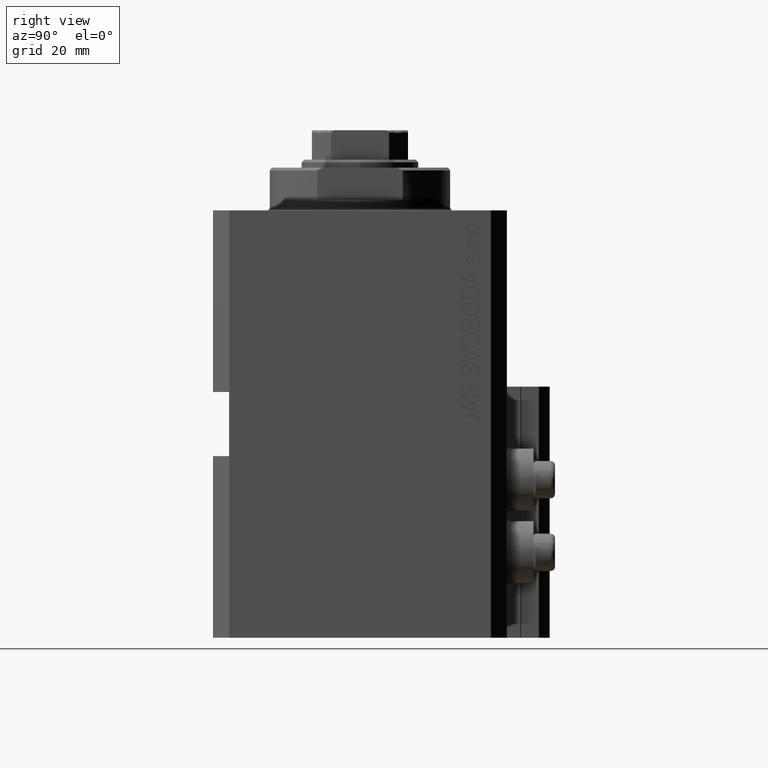
[diagram: clean part render]
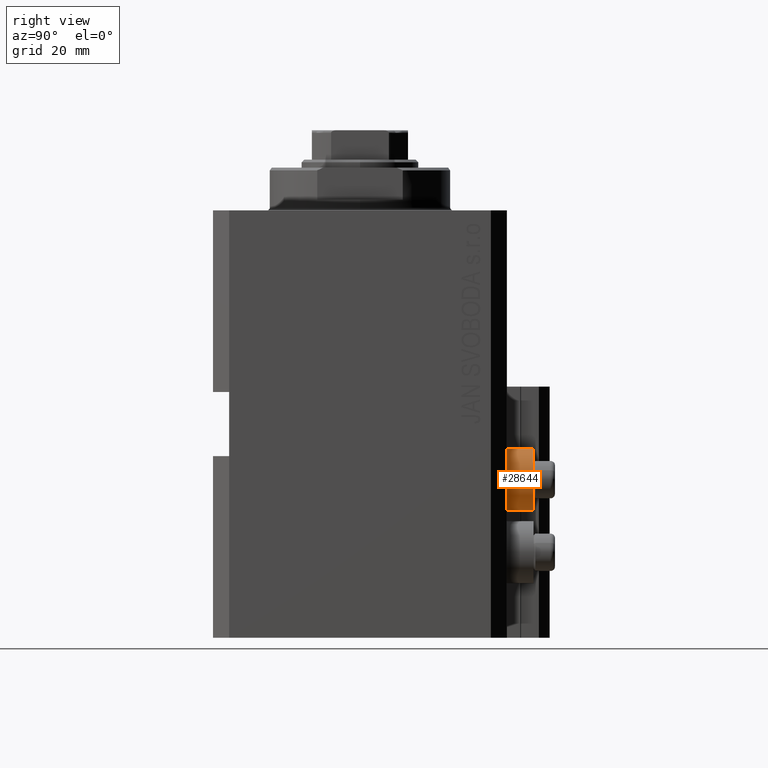
[diagram: same view with one face highlighted and labeled with its STEP entity id]
A machine part, right view. The second image highlights one B-rep face of the part: STEP entity #28644.
In plain terms, the highlighted cylindrical surface (edge-blend (fillet) strip) has radius 5.8 mm, axis along (0, 1, 0).
Its self-contained STEP definition (entity closure, byte-faithful):
#2962 = DIRECTION ( 'NONE',  ( 0.000000000000000000, 1.000000000000000000, 0.000000000000000000 ) ) ;
#6095 = ORIENTED_EDGE ( 'NONE', *, *, #8530, .F. ) ;
#8530 = EDGE_CURVE ( 'NONE', #28333, #27149, #36085, .T. ) ;
#10288 = EDGE_CURVE ( 'NONE', #15228, #27149, #30249, .T. ) ;
#12802 = DIRECTION ( 'NONE',  ( -0.000000000000000000, -1.000000000000000000, -0.000000000000000000 ) ) ;
#13584 = EDGE_CURVE ( 'NONE', #37898, #28333, #17393, .T. ) ;
#14258 = CARTESIAN_POINT ( 'NONE',  ( 18.00000000000000355, 32.49999999996100541, -44.60000000000000142 ) ) ;
#15228 = VERTEX_POINT ( 'NONE', #41702 ) ;
#16398 = EDGE_LOOP ( 'NONE', ( #43533, #40308, #40100, #6095 ) ) ;
#16473 = DIRECTION ( 'NONE',  ( 0.000000000000000000, 0.000000000000000000, 1.000000000000000000 ) ) ;
#17393 = CIRCLE ( 'NONE', #30992, 5.799999999999999822 ) ;
#18068 = CARTESIAN_POINT ( 'NONE',  ( 18.00000000000000355, 32.49999999996100541, -44.60000000000000142 ) ) ;
#20019 = CARTESIAN_POINT ( 'NONE',  ( 18.00000000000000355, 32.49999999996100541, -50.39999999999999858 ) ) ;
#20365 = CARTESIAN_POINT ( 'NONE',  ( 18.00000000000000355, 27.50000000000000355, -50.39999999999999858 ) ) ;
#20513 = LINE ( 'NONE', #42294, #24301 ) ;
#24301 = VECTOR ( 'NONE', #24304, 1000.000000000000000 ) ;
#24304 = DIRECTION ( 'NONE',  ( 0.000000000000000000, 1.000000000000000000, 0.000000000000000000 ) ) ;
#24392 = DIRECTION ( 'NONE',  ( 0.000000000000000000, 0.000000000000000000, 1.000000000000000000 ) ) ;
#25707 = AXIS2_PLACEMENT_3D ( 'NONE', #20019, #41339, #16473 ) ;
#26795 = AXIS2_PLACEMENT_3D ( 'NONE', #43198, #2962, #39661 ) ;
#27149 = VERTEX_POINT ( 'NONE', #14258 ) ;
#28291 = FACE_OUTER_BOUND ( 'NONE', #16398, .T. ) ;
#28333 = VERTEX_POINT ( 'NONE', #40477 ) ;
#28644 = ADVANCED_FACE ( 'NONE', ( #28291 ), #28750, .T. ) ;
#28750 = CYLINDRICAL_SURFACE ( 'NONE', #26795, 5.799999999999999822 ) ;
#28959 = DIRECTION ( 'NONE',  ( 0.000000000000000000, 1.000000000000000000, 0.000000000000000000 ) ) ;
#30249 = CIRCLE ( 'NONE', #25707, 5.799999999999999822 ) ;
#30992 = AXIS2_PLACEMENT_3D ( 'NONE', #20365, #12802, #24392 ) ;
#31552 = CARTESIAN_POINT ( 'NONE',  ( 18.00000000000000355, 27.50000000000000355, -56.20000000000000284 ) ) ;
#33229 = VECTOR ( 'NONE', #28959, 1000.000000000000000 ) ;
#36085 = LINE ( 'NONE', #18068, #33229 ) ;
#37898 = VERTEX_POINT ( 'NONE', #31552 ) ;
#38960 = EDGE_CURVE ( 'NONE', #37898, #15228, #20513, .T. ) ;
#39661 = DIRECTION ( 'NONE',  ( 0.000000000000000000, 0.000000000000000000, 1.000000000000000000 ) ) ;
#40100 = ORIENTED_EDGE ( 'NONE', *, *, #10288, .T. ) ;
#40308 = ORIENTED_EDGE ( 'NONE', *, *, #38960, .T. ) ;
#40477 = CARTESIAN_POINT ( 'NONE',  ( 18.00000000000000355, 27.50000000000000355, -44.60000000000000142 ) ) ;
#41339 = DIRECTION ( 'NONE',  ( -0.000000000000000000, -1.000000000000000000, -0.000000000000000000 ) ) ;
#41702 = CARTESIAN_POINT ( 'NONE',  ( 18.00000000000000355, 32.49999999996100541, -56.20000000000000284 ) ) ;
#42294 = CARTESIAN_POINT ( 'NONE',  ( 18.00000000000000355, 32.49999999996100541, -56.20000000000000284 ) ) ;
#43198 = CARTESIAN_POINT ( 'NONE',  ( 18.00000000000000355, 32.49999999996100541, -50.39999999999999858 ) ) ;
#43533 = ORIENTED_EDGE ( 'NONE', *, *, #13584, .F. ) ;